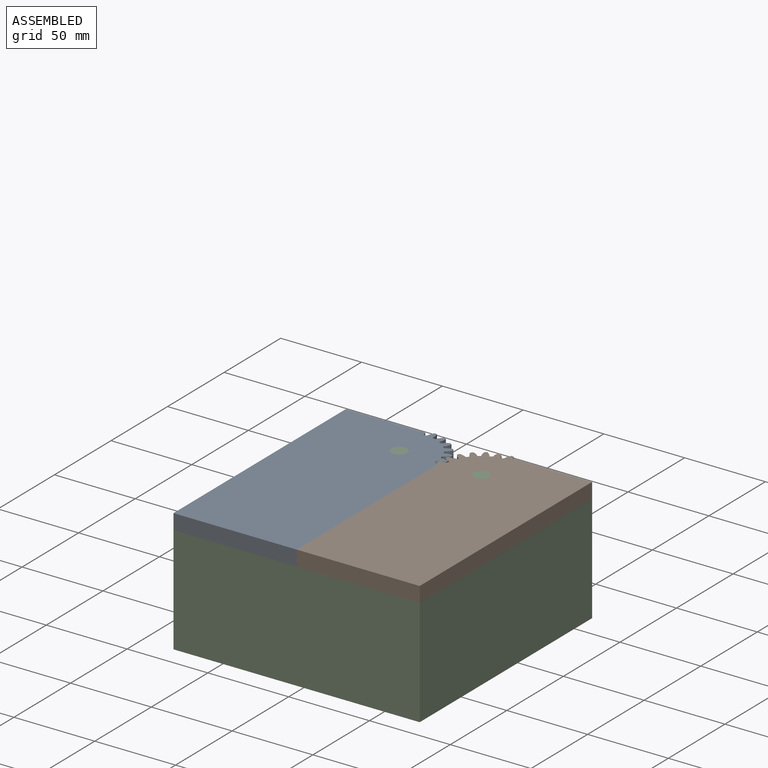
[diagram: assembled view]
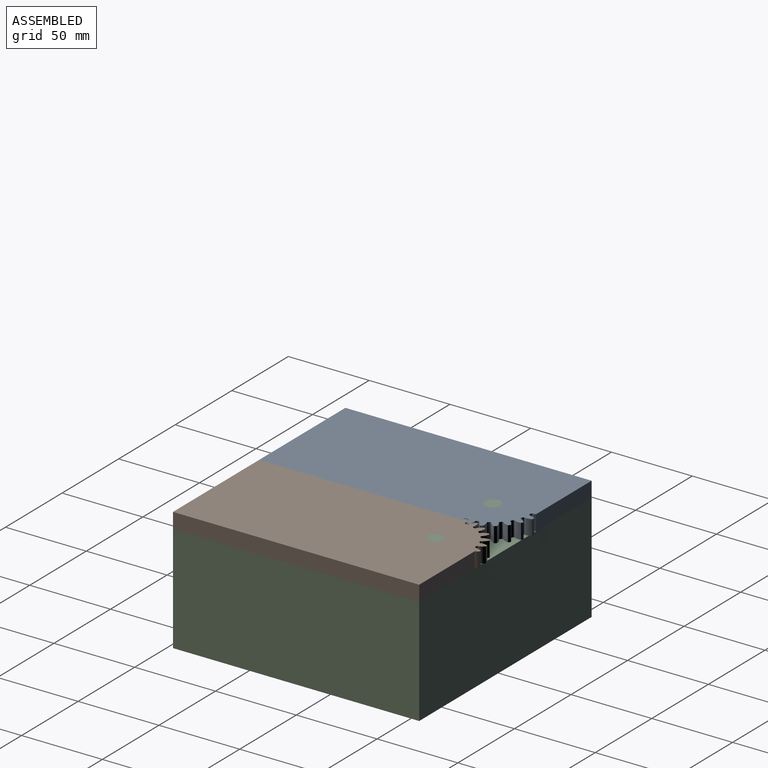
[diagram: assembled view, second angle]
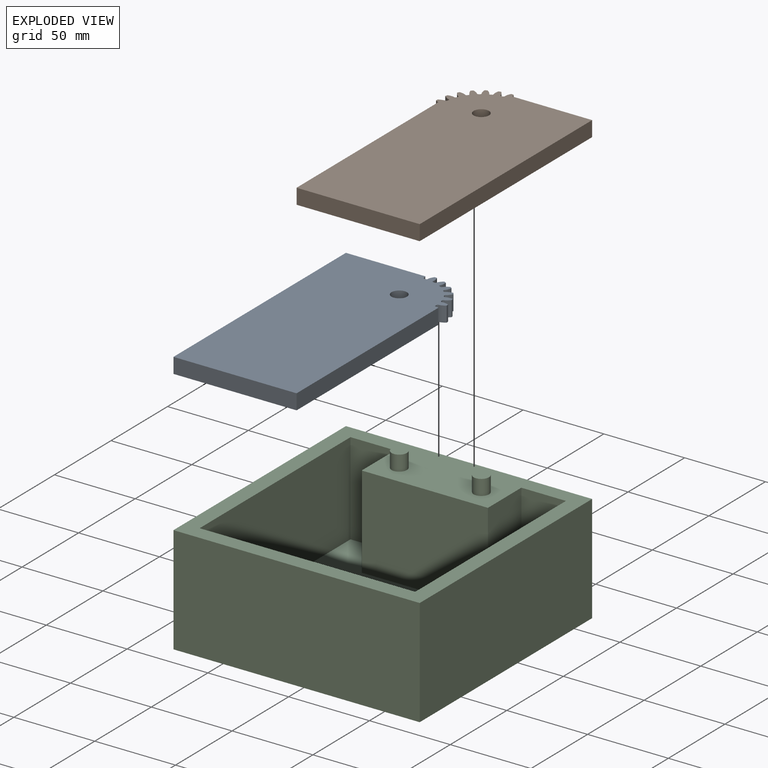
[diagram: exploded view]
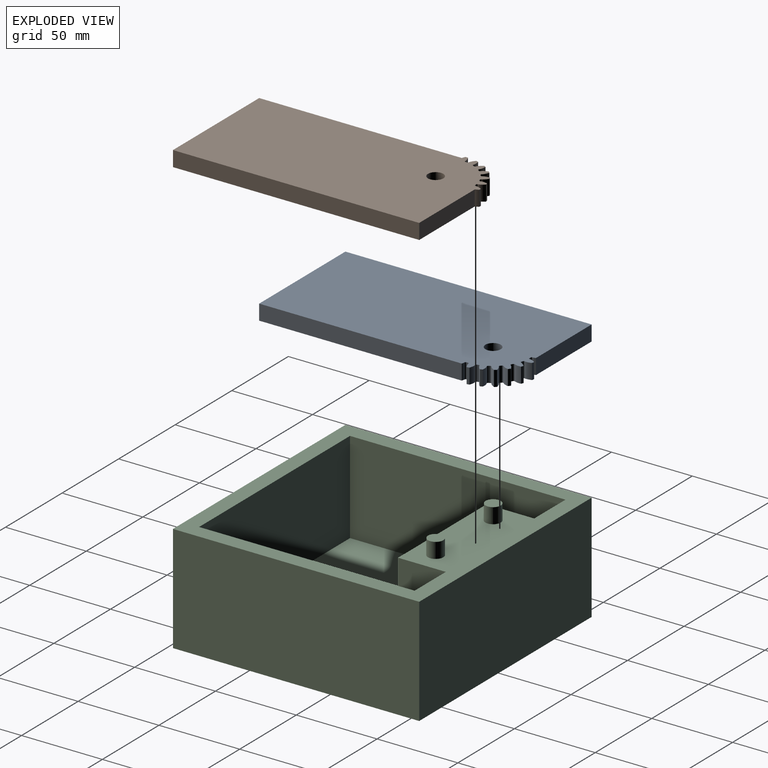
[diagram: exploded view, second angle]
ASSEMBLY  parts=3 mates=2
PART A: 50 faces, bbox 78.2x154.4x9.5 mm
  f0: plane 9.53x0.08mm, normal (0,1,0), area 0.8mm2, adj f4,f7,f8,f17
  f1: plane 9.53x0.08mm, normal (1,0,0), area 0.8mm2, adj f6,f7,f8,f45
  f2: plane 152.4x9.53mm, normal (-1,0,0), area 1451.6mm2, adj f3,f6,f7,f8
  f3: plane 76.2x9.53mm, normal (0,-1,0), area 725.8mm2, adj f2,f4,f7,f8
  f4: plane 125.35x9.53mm, normal (1,0,0), area 1193.9mm2, adj f0,f3,f7,f8
  f5: cylinder r=4.76mm len=9.53mm, axis (0,0,-1), area 285mm2, adj f7,f8
  f6: plane 49.15x9.53mm, normal (0,1,0), area 468.1mm2, adj f1,f2,f7,f8
  f7: plane 154.38x78.18mm, normal (0,0,1), area 11387.9mm2, adj f0,f1,f2,f3,f4,f5,f6,f9
  f8: plane 154.38x78.18mm, normal (0,0,-1), area 11387.9mm2, adj f0,f1,f2,f3,f4,f5,f6,f9
  f9: cylinder r=27.52mm len=9.53mm, axis (0,0,-1), area 15.1mm2, adj f7,f8,f40,f47
  f10: cylinder r=27.52mm len=9.53mm, axis (0,0,-1), area 15.1mm2, adj f7,f8,f25,f42
  f11: cylinder r=27.52mm len=9.53mm, axis (0,0,-1), area 15.1mm2, adj f7,f8,f15,f37
  f12: cylinder r=27.52mm len=9.53mm, axis (0,0,-1), area 15.1mm2, adj f7,f8,f32,f35
  f13: cylinder r=27.52mm len=9.53mm, axis (0,0,-1), area 15.1mm2, adj f7,f8,f20,f27
  f14: cylinder r=27.52mm len=9.53mm, axis (0,0,-1), area 15.1mm2, adj f7,f8,f22,f30
  f15: extruded ~9.53x3.82mm, area 39.8mm2, adj f7,f8,f11,f18
  f16: cylinder r=22.75mm len=9.53mm, axis (0,0,-1), area 7.3mm2, adj f7,f8,f18,f19
  f17: extruded ~9.53x1.77mm, area 17.6mm2, adj f0,f7,f8,f19
  f18: cylinder r=0.84mm len=9.53mm, axis (0,0,-1), area 12.3mm2, adj f7,f8,f15,f16
  f19: cylinder r=0.84mm len=9.53mm, axis (0,0,-1), area 12.3mm2, adj f7,f8,f16,f17
  f20: extruded ~9.53x3.81mm, area 39.8mm2, adj f7,f8,f13,f23
  f21: cylinder r=22.75mm len=9.53mm, axis (0,0,-1), area 7.3mm2, adj f7,f8,f23,f24
  f22: extruded ~9.53x3.81mm, area 39.8mm2, adj f7,f8,f14,f24
  f23: cylinder r=0.84mm len=9.53mm, axis (0,0,-1), area 12.3mm2, adj f7,f8,f20,f21
  f24: cylinder r=0.84mm len=9.53mm, axis (0,0,-1), area 12.3mm2, adj f7,f8,f21,f22
  f25: extruded ~9.53x4.09mm, area 39.8mm2, adj f7,f8,f10,f28
  f26: cylinder r=22.75mm len=9.53mm, axis (0,0,-1), area 7.3mm2, adj f7,f8,f28,f29
  f27: extruded ~9.53x3.26mm, area 39.8mm2, adj f7,f8,f13,f29
  f28: cylinder r=0.84mm len=9.53mm, axis (0,0,-1), area 12.3mm2, adj f7,f8,f25,f26
  f29: cylinder r=0.84mm len=9.53mm, axis (0,0,-1), area 12.3mm2, adj f7,f8,f26,f27
  f30: extruded ~9.53x3.26mm, area 39.8mm2, adj f7,f8,f14,f33
  f31: cylinder r=22.75mm len=9.53mm, axis (0,0,-1), area 7.3mm2, adj f7,f8,f33,f34
  f32: extruded ~9.53x4.09mm, area 39.8mm2, adj f7,f8,f12,f34
  f33: cylinder r=0.84mm len=9.53mm, axis (0,0,-1), area 12.3mm2, adj f7,f8,f30,f31
  f34: cylinder r=0.84mm len=9.53mm, axis (0,0,-1), area 12.3mm2, adj f7,f8,f31,f32
  f35: extruded ~9.53x3.29mm, area 39.8mm2, adj f7,f8,f12,f38
  f36: cylinder r=22.75mm len=9.53mm, axis (0,0,-1), area 7.3mm2, adj f7,f8,f38,f39
  f37: extruded ~9.53x4.1mm, area 39.8mm2, adj f7,f8,f11,f39
  f38: cylinder r=0.84mm len=9.53mm, axis (0,0,-1), area 12.3mm2, adj f7,f8,f35,f36
  f39: cylinder r=0.84mm len=9.53mm, axis (0,0,-1), area 12.3mm2, adj f7,f8,f36,f37
  f40: extruded ~9.53x4.1mm, area 39.8mm2, adj f7,f8,f9,f43
  f41: cylinder r=22.75mm len=9.53mm, axis (0,0,-1), area 7.3mm2, adj f7,f8,f43,f44
  f42: extruded ~9.53x3.29mm, area 39.8mm2, adj f7,f8,f10,f44
  f43: cylinder r=0.84mm len=9.53mm, axis (0,0,-1), area 12.3mm2, adj f7,f8,f40,f41
  f44: cylinder r=0.84mm len=9.53mm, axis (0,0,-1), area 12.3mm2, adj f7,f8,f41,f42
  f45: extruded ~9.53x1.77mm, area 17.6mm2, adj f1,f7,f8,f48
  f46: cylinder r=22.75mm len=9.53mm, axis (0,0,-1), area 7.3mm2, adj f7,f8,f48,f49
  f47: extruded ~9.53x3.82mm, area 39.8mm2, adj f7,f8,f9,f49
  f48: cylinder r=0.84mm len=9.53mm, axis (0,0,-1), area 12.3mm2, adj f7,f8,f45,f46
  f49: cylinder r=0.84mm len=9.53mm, axis (0,0,-1), area 12.3mm2, adj f7,f8,f46,f47
PART B: 48 faces, bbox 78.3x154.5x9.5 mm
  f0: plane 154.52x78.32mm, normal (0,0,-1), area 11400.5mm2, adj f1,f2,f3,f4,f5,f6,f7,f9
  f1: cylinder r=27.52mm len=9.53mm, axis (0,0,-1), area 14.4mm2, adj f0,f8,f37,f40
  f2: cylinder r=27.52mm len=9.53mm, axis (0,0,-1), area 14.4mm2, adj f0,f8,f32,f36
  f3: cylinder r=27.52mm len=9.53mm, axis (0,0,-1), area 14.4mm2, adj f0,f8,f27,f31
  f4: cylinder r=27.52mm len=9.53mm, axis (0,0,-1), area 14.4mm2, adj f0,f8,f22,f26
  f5: cylinder r=27.52mm len=9.53mm, axis (0,0,-1), area 14.4mm2, adj f0,f8,f17,f21
  f6: cylinder r=27.52mm len=9.53mm, axis (0,0,-1), area 14.4mm2, adj f0,f8,f12,f16
  f7: cylinder r=27.52mm len=9.53mm, axis (0,0,-1), area 14.4mm2, adj f0,f8,f9,f11
  f8: plane 154.52x78.32mm, normal (0,0,1), area 11400.5mm2, adj f1,f2,f3,f4,f5,f6,f7,f9
  f9: extruded ~9.53x2.13mm, area 22mm2, adj f0,f7,f8,f43
  f10: cylinder r=22.75mm len=9.53mm, axis (0,0,-1), area 7mm2, adj f0,f8,f13,f14
  f11: extruded ~9.53x4.03mm, area 40.2mm2, adj f0,f7,f8,f13
  f12: extruded ~9.53x3.6mm, area 40.2mm2, adj f0,f6,f8,f14
  f13: cylinder r=0.81mm len=9.53mm, axis (0,0,-1), area 11.8mm2, adj f0,f8,f10,f11
  f14: cylinder r=0.81mm len=9.53mm, axis (0,0,-1), area 11.8mm2, adj f0,f8,f10,f12
  f15: cylinder r=22.75mm len=9.53mm, axis (0,0,-1), area 7mm2, adj f0,f8,f18,f19
  f16: extruded ~9.53x4.19mm, area 40.2mm2, adj f0,f6,f8,f18
  f17: extruded ~9.53x3mm, area 40.2mm2, adj f0,f5,f8,f19
  f18: cylinder r=0.81mm len=9.53mm, axis (0,0,-1), area 11.8mm2, adj f0,f8,f15,f16
  f19: cylinder r=0.81mm len=9.53mm, axis (0,0,-1), area 11.8mm2, adj f0,f8,f15,f17
  f20: cylinder r=22.75mm len=9.53mm, axis (0,0,-1), area 7mm2, adj f0,f8,f23,f24
  f21: extruded ~9.53x4.06mm, area 40.2mm2, adj f0,f5,f8,f23
  f22: extruded ~9.53x3.65mm, area 40.2mm2, adj f0,f4,f8,f24
  f23: cylinder r=0.81mm len=9.53mm, axis (0,0,-1), area 11.8mm2, adj f0,f8,f20,f21
  f24: cylinder r=0.81mm len=9.53mm, axis (0,0,-1), area 11.8mm2, adj f0,f8,f20,f22
  f25: cylinder r=22.75mm len=9.53mm, axis (0,0,-1), area 7mm2, adj f0,f8,f28,f29
  f26: extruded ~9.53x3.65mm, area 40.2mm2, adj f0,f4,f8,f28
  f27: extruded ~9.53x4.06mm, area 40.2mm2, adj f0,f3,f8,f29
  f28: cylinder r=0.81mm len=9.53mm, axis (0,0,-1), area 11.8mm2, adj f0,f8,f25,f26
  f29: cylinder r=0.81mm len=9.53mm, axis (0,0,-1), area 11.8mm2, adj f0,f8,f25,f27
  f30: cylinder r=22.75mm len=9.53mm, axis (0,0,-1), area 7mm2, adj f0,f8,f33,f34
  f31: extruded ~9.53x3mm, area 40.2mm2, adj f0,f3,f8,f33
  f32: extruded ~9.53x4.19mm, area 40.2mm2, adj f0,f2,f8,f34
  f33: cylinder r=0.81mm len=9.53mm, axis (0,0,-1), area 11.8mm2, adj f0,f8,f30,f31
  f34: cylinder r=0.81mm len=9.53mm, axis (0,0,-1), area 11.8mm2, adj f0,f8,f30,f32
  f35: cylinder r=22.75mm len=9.53mm, axis (0,0,-1), area 7mm2, adj f0,f8,f38,f39
  f36: extruded ~9.53x3.6mm, area 40.2mm2, adj f0,f2,f8,f38
  f37: extruded ~9.53x4.03mm, area 40.2mm2, adj f0,f1,f8,f39
  f38: cylinder r=0.81mm len=9.53mm, axis (0,0,-1), area 11.8mm2, adj f0,f8,f35,f36
  f39: cylinder r=0.81mm len=9.53mm, axis (0,0,-1), area 11.8mm2, adj f0,f8,f35,f37
  f40: extruded ~9.53x2.13mm, area 22mm2, adj f0,f1,f8,f42
  f41: cylinder r=4.76mm len=9.53mm, axis (0,0,-1), area 285mm2, adj f0,f8
  f42: plane 9.53x0.02mm, normal (0,1,0), area 0.2mm2, adj f0,f8,f40,f44
  f43: plane 9.53x0.02mm, normal (-1,0,0), area 0.2mm2, adj f0,f8,f9,f47
  f44: plane 125.35x9.53mm, normal (-1,0,0), area 1193.9mm2, adj f0,f8,f42,f45
  f45: plane 76.2x9.53mm, normal (0,-1,0), area 725.8mm2, adj f0,f8,f44,f46
  f46: plane 152.4x9.53mm, normal (1,0,0), area 1451.6mm2, adj f0,f8,f45,f47
  f47: plane 49.15x9.53mm, normal (0,1,0), area 468.1mm2, adj f0,f8,f43,f46
PART C: 19 faces, bbox 152.4x152.4x76.2 mm
  f0: plane 152.4x66.68mm, normal (0,1,0), area 10161.3mm2, adj f1,f11,f12,f13
  f1: plane 152.4x66.68mm, normal (-1,0,0), area 10161.3mm2, adj f0,f2,f12,f13
  f2: plane 152.4x66.68mm, normal (0,-1,0), area 10161.3mm2, adj f1,f11,f12,f13
  f3: plane 133.35x57.15mm, normal (1,0,0), area 7621mm2, adj f4,f10,f12,f14
  f4: plane 57.15x27.62mm, normal (0,-1,0), area 1578.6mm2, adj f3,f5,f12,f14
  f5: plane 57.15x29.53mm, normal (-1,0,0), area 1687.5mm2, adj f4,f6,f12,f14
  f6: plane 78.11x57.15mm, normal (0,-1,0), area 4463.7mm2, adj f5,f7,f12,f14
  f7: plane 57.15x29.53mm, normal (1,0,0), area 1687.5mm2, adj f6,f8,f12,f14
  f8: plane 57.15x27.62mm, normal (0,-1,0), area 1578.6mm2, adj f7,f9,f12,f14
  f9: plane 133.35x57.15mm, normal (-1,0,0), area 7621mm2, adj f8,f10,f12,f14
  f10: plane 133.35x57.15mm, normal (0,1,0), area 7621mm2, adj f3,f9,f12,f14
  f11: plane 152.4x66.68mm, normal (1,0,0), area 10161.3mm2, adj f0,f2,f12,f13
  f12: plane 152.4x152.4mm, normal (0,0,1), area 7607.3mm2, adj f0,f1,f2,f3,f4,f5,f6,f7
  f13: plane 152.4x152.4mm, normal (0,0,-1), area 23225.8mm2, adj f0,f1,f2,f11
  f14: plane 133.35x133.35mm, normal (0,0,1), area 15476mm2, adj f3,f4,f5,f6,f7,f8,f9,f10
  f15: cylinder r=4.76mm len=9.53mm, axis (0,0,1), area 285mm2, adj f12,f16
  f16: plane 9.53x9.53mm, normal (0,0,1), area 71.3mm2, adj f15
  f17: cylinder r=4.76mm len=9.53mm, axis (0,0,1), area 285mm2, adj f12,f18
  f18: plane 9.53x9.53mm, normal (0,0,1), area 71.3mm2, adj f17
PLACE A rot(axis=(-0.03,-0.06,1),0deg) t=(0,-16.76,0)mm
PLACE B rot(axis=(0,0,1),0deg) t=(0,-16.76,0)mm
PLACE C t=(0,-16.76,0)mm fixed
MATE revolute B.f1 <-> C.f15  axis (0,0,1) through (25.4,34.04,76.2)mm
MATE revolute C.f17 <-> A.f5  axis (0,0,1) through (-25.4,34.04,76.2)mm
